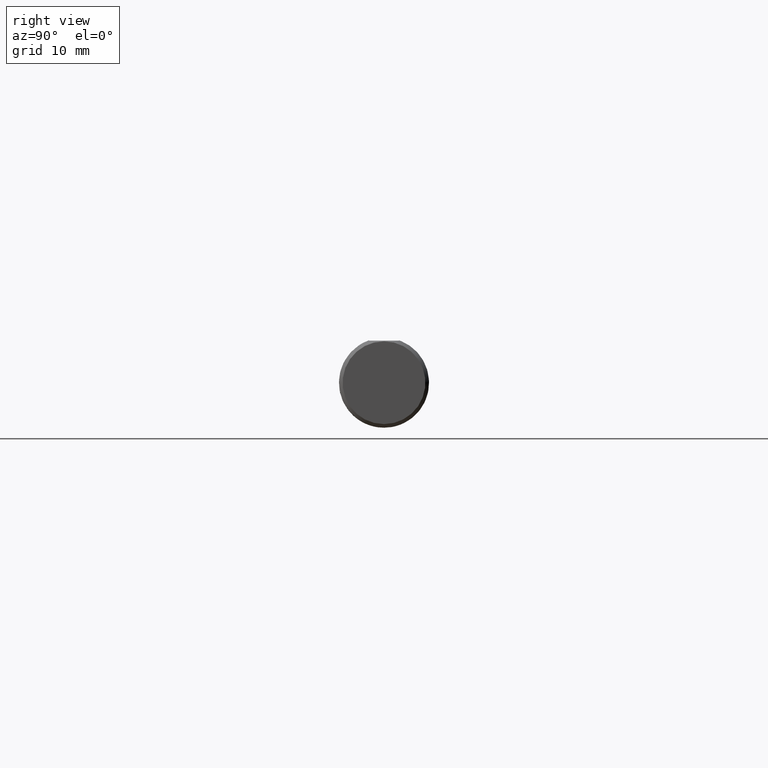
[diagram: clean part render]
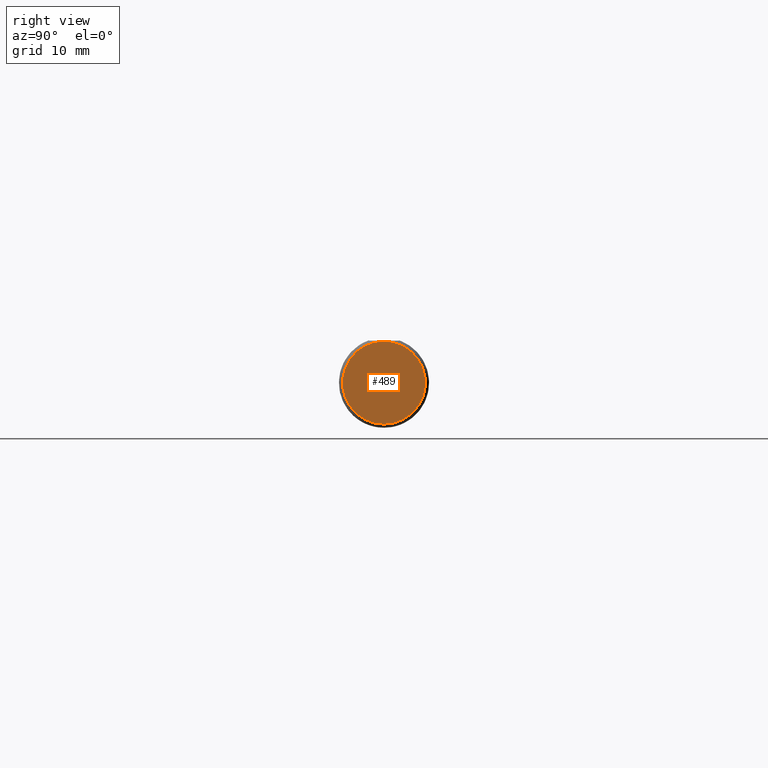
[diagram: same view with one face highlighted and labeled with its STEP entity id]
A machine part, right view. The second image highlights one B-rep face of the part: STEP entity #489.
In plain terms, the highlighted planar face has unit normal (-1, -0, 0).
Its self-contained STEP definition (entity closure, byte-faithful):
#68 = CIRCLE ( 'NONE', #856, 0.1723499999999953958 ) ;
#103 = AXIS2_PLACEMENT_3D ( 'NONE', #764, #199, #139 ) ;
#139 = DIRECTION ( 'NONE',  ( 3.061616997868383634E-16, -1.000000000000000000, 0.000000000000000000 ) ) ;
#143 = CIRCLE ( 'NONE', #213, 0.1723499999999953958 ) ;
#173 = EDGE_CURVE ( 'NONE', #499, #448, #143, .T. ) ;
#199 = DIRECTION ( 'NONE',  ( -1.000000000000000000, -3.061616997868383634E-16, 0.000000000000000000 ) ) ;
#213 = AXIS2_PLACEMENT_3D ( 'NONE', #580, #792, #438 ) ;
#228 = EDGE_CURVE ( 'NONE', #448, #499, #68, .T. ) ;
#340 = CARTESIAN_POINT ( 'NONE',  ( -5.805176986536559586E-16, -1.061536189819736218E-31, 0.1723499999999953958 ) ) ;
#438 = DIRECTION ( 'NONE',  ( 3.061616997868385113E-16, -1.000000000000000000, 0.000000000000000000 ) ) ;
#448 = VERTEX_POINT ( 'NONE', #552 ) ;
#482 = ORIENTED_EDGE ( 'NONE', *, *, #228, .T. ) ;
#489 = ADVANCED_FACE ( 'NONE', ( #889 ), #761, .F. ) ;
#499 = VERTEX_POINT ( 'NONE', #340 ) ;
#552 = CARTESIAN_POINT ( 'NONE',  ( -5.805176986536559586E-16, 2.202527268266475292E-17, -0.1723499999999953958 ) ) ;
#569 = CARTESIAN_POINT ( 'NONE',  ( -5.805176986536559586E-16, -5.276696895825984207E-17, 0.000000000000000000 ) ) ;
#580 = CARTESIAN_POINT ( 'NONE',  ( -5.805176986536559586E-16, -5.276696895825984207E-17, 0.000000000000000000 ) ) ;
#689 = ORIENTED_EDGE ( 'NONE', *, *, #173, .T. ) ;
#761 = PLANE ( 'NONE',  #103 ) ;
#764 = CARTESIAN_POINT ( 'NONE',  ( -7.195315441751020520E-16, 0.4361571359356877231, -0.1873499999999999888 ) ) ;
#792 = DIRECTION ( 'NONE',  ( 1.000000000000000000, 3.061616997868383634E-16, 0.000000000000000000 ) ) ;
#852 = DIRECTION ( 'NONE',  ( 1.000000000000000000, 3.061616997868383634E-16, 0.000000000000000000 ) ) ;
#853 = EDGE_LOOP ( 'NONE', ( #689, #482 ) ) ;
#855 = DIRECTION ( 'NONE',  ( 3.061616997868385113E-16, -1.000000000000000000, 0.000000000000000000 ) ) ;
#856 = AXIS2_PLACEMENT_3D ( 'NONE', #569, #852, #855 ) ;
#889 = FACE_OUTER_BOUND ( 'NONE', #853, .T. ) ;